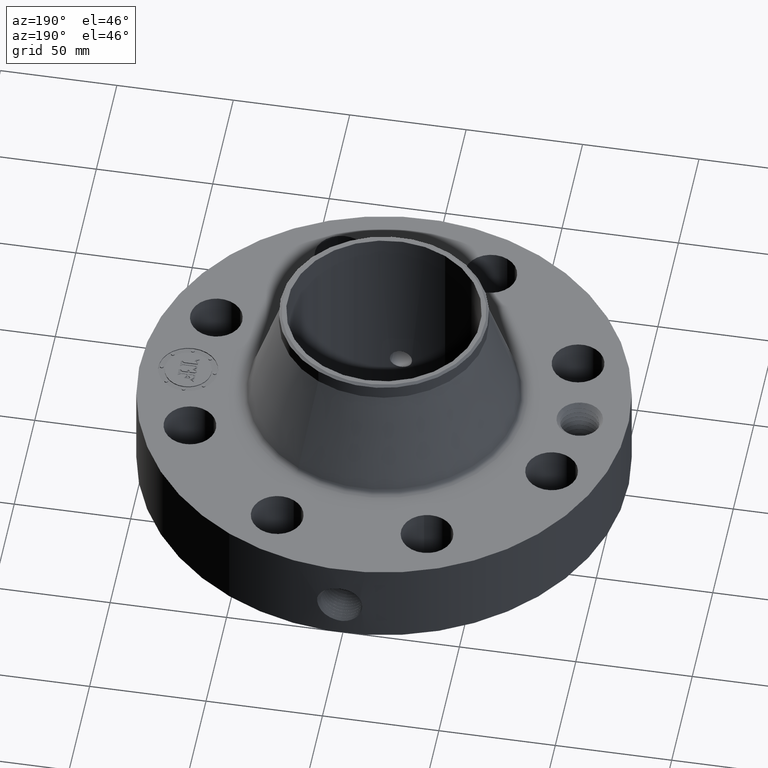
[diagram: clean part render]
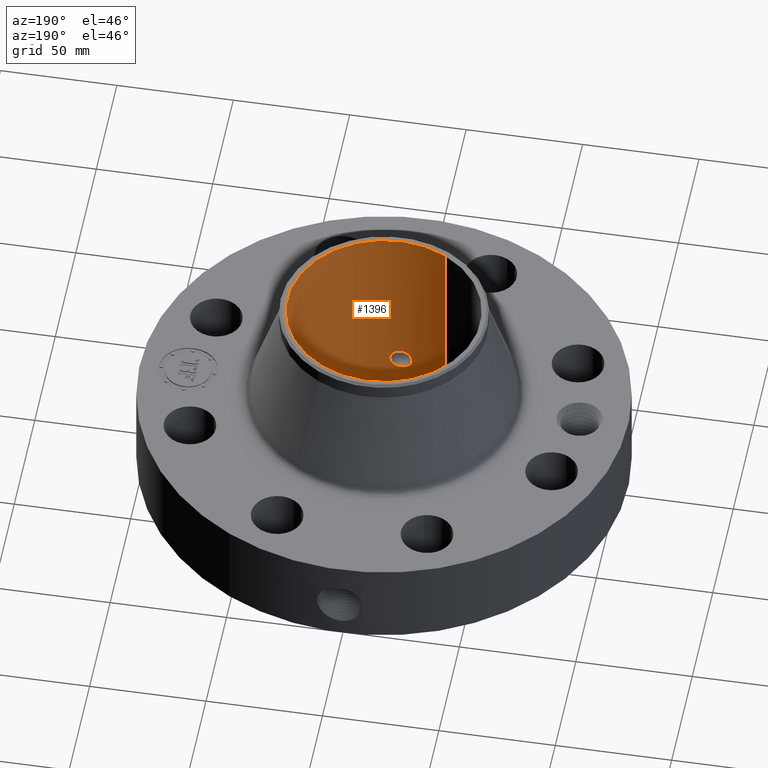
[diagram: same view with one face highlighted and labeled with its STEP entity id]
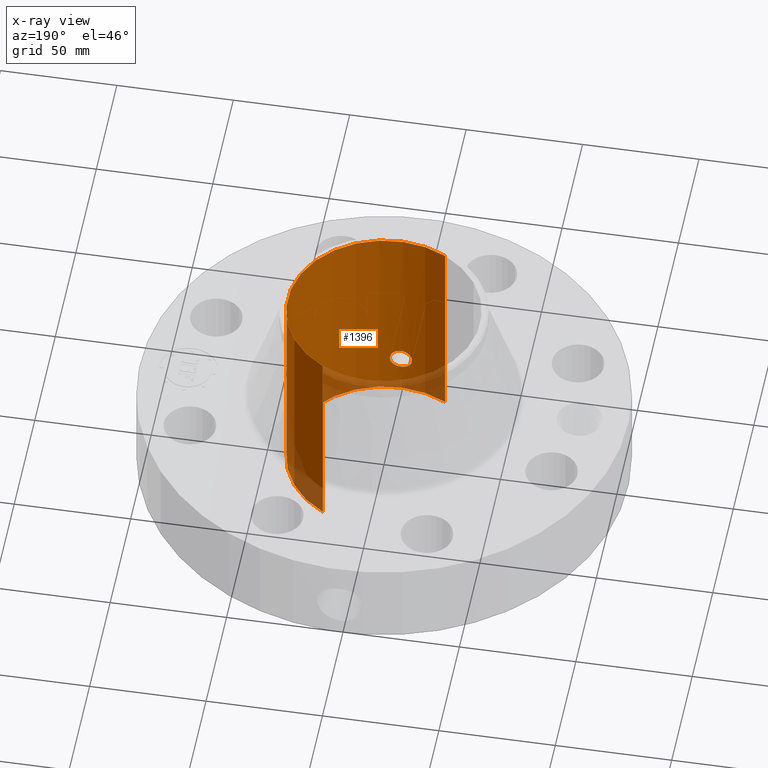
[diagram: x-ray of the same camera — body ghosted, the highlighted face saturated]
A machine part, auxiliary view. The second image highlights one B-rep face of the part: STEP entity #1396.
The next image is the same camera in x-ray: the body ghosted, the highlighted face saturated — about 12% of this face is hidden behind the body in this view.
In plain terms, the highlighted cylindrical surface (partial cylindrical patch) has radius 41.402 mm, axis along (0, 0, -1).
Its self-contained STEP definition (entity closure, byte-faithful):
#242=AXIS2_PLACEMENT_3D('Circle Axis2P3D',#240,#241,$) ;
#1327=AXIS2_PLACEMENT_3D('Cylinder Axis2P3D',#1324,#1325,#1326) ;
#1331=AXIS2_PLACEMENT_3D('Circle Axis2P3D',#1329,#1330,$) ;
#240=CARTESIAN_POINT('Axis2P3D Location',(0.,0.,0.250000000001)) ;
#244=CARTESIAN_POINT('Vertex',(0.781463627928,1.43045957589,0.250000000001)) ;
#246=CARTESIAN_POINT('Vertex',(-0.781463627928,-1.43045957589,0.250000000001)) ;
#1324=CARTESIAN_POINT('Axis2P3D Location',(0.,0.,2.00000000001)) ;
#1329=CARTESIAN_POINT('Axis2P3D Location',(0.,0.,3.75000000002)) ;
#1333=CARTESIAN_POINT('Vertex',(0.781463627928,1.43045957589,3.75000000002)) ;
#1335=CARTESIAN_POINT('Vertex',(-0.781463627928,-1.43045957589,3.75000000002)) ;
#1338=CARTESIAN_POINT('Line Origine',(0.781463627928,1.43045957589,2.00000000001)) ;
#1343=CARTESIAN_POINT('Line Origine',(-0.781463627928,-1.43045957589,2.00000000001)) ;
#1355=CARTESIAN_POINT('Control Point',(0.164546730355,-1.62167332516,0.850107711515)) ;
#1356=CARTESIAN_POINT('Control Point',(0.153730904127,-1.62277077729,0.830309474404)) ;
#1357=CARTESIAN_POINT('Control Point',(0.139942349399,-1.62407876481,0.81214694539)) ;
#1358=CARTESIAN_POINT('Control Point',(0.123505340189,-1.62546441109,0.796205643267)) ;
#1359=CARTESIAN_POINT('Control Point',(0.0771149468205,-1.62865979876,0.763178194438)) ;
#1360=CARTESIAN_POINT('Control Point',(0.0210941914913,-1.63041284554,0.748992986924)) ;
#1361=CARTESIAN_POINT('Control Point',(-0.0139425212436,-1.6304972922,0.748336697801)) ;
#1362=CARTESIAN_POINT('Control Point',(-0.0704792362493,-1.62897951384,0.760425773536)) ;
#1363=CARTESIAN_POINT('Control Point',(-0.118085597948,-1.62587625767,0.791718211055)) ;
#1364=CARTESIAN_POINT('Control Point',(-0.135115102468,-1.62449678863,0.807051725927)) ;
#1365=CARTESIAN_POINT('Control Point',(-0.174462073877,-1.62087059832,0.855085596914)) ;
#1366=CARTESIAN_POINT('Control Point',(-0.192229414376,-1.61861986851,0.916044524613)) ;
#1367=CARTESIAN_POINT('Control Point',(-0.192985142731,-1.61851751906,0.956842005437)) ;
#1368=CARTESIAN_POINT('Control Point',(-0.183175157004,-1.61978314997,0.995793182236)) ;
#1369=CARTESIAN_POINT('Control Point',(-0.164546730355,-1.62167332516,1.02989228849)) ;
#1370=CARTESIAN_POINT('Vertex',(0.164546730355,-1.62167332516,0.850107711515)) ;
#1372=CARTESIAN_POINT('Vertex',(-0.164546730355,-1.62167332516,1.02989228849)) ;
#1376=CARTESIAN_POINT('Control Point',(-0.164546730355,-1.62167332516,1.02989228849)) ;
#1377=CARTESIAN_POINT('Control Point',(-0.153730904133,-1.62277077729,1.04969052559)) ;
#1378=CARTESIAN_POINT('Control Point',(-0.139942349414,-1.62407876481,1.0678530546)) ;
#1379=CARTESIAN_POINT('Control Point',(-0.123505340166,-1.6254644111,1.08379435676)) ;
#1380=CARTESIAN_POINT('Control Point',(-0.0771149468048,-1.62865979876,1.11682180557)) ;
#1381=CARTESIAN_POINT('Control Point',(-0.0210941914874,-1.63041284554,1.13100701308)) ;
#1382=CARTESIAN_POINT('Control Point',(0.0139425212438,-1.6304972922,1.13166330221)) ;
#1383=CARTESIAN_POINT('Control Point',(0.0704792362498,-1.62897951384,1.11957422647)) ;
#1384=CARTESIAN_POINT('Control Point',(0.118085597949,-1.62587625767,1.08828178895)) ;
#1385=CARTESIAN_POINT('Control Point',(0.13511510247,-1.62449678863,1.07294827408)) ;
#1386=CARTESIAN_POINT('Control Point',(0.174462073878,-1.62087059832,1.02491440309)) ;
#1387=CARTESIAN_POINT('Control Point',(0.192229414377,-1.61861986851,0.963955475393)) ;
#1388=CARTESIAN_POINT('Control Point',(0.192985142732,-1.61851751906,0.92315799457)) ;
#1389=CARTESIAN_POINT('Control Point',(0.183175157004,-1.61978314997,0.884206817771)) ;
#1390=CARTESIAN_POINT('Control Point',(0.164546730355,-1.62167332516,0.850107711515)) ;
#241=DIRECTION('Axis2P3D Direction',(0.,0.,-0.0393700787402)) ;
#1325=DIRECTION('Axis2P3D Direction',(0.,0.,-0.0393700787402)) ;
#1326=DIRECTION('Axis2P3D XDirection',(-0.0188750212049,-0.0345504945626,0.)) ;
#1330=DIRECTION('Axis2P3D Direction',(0.,0.,-0.0393700787402)) ;
#1339=DIRECTION('Vector Direction',(0.,0.,-0.0393700787402)) ;
#1344=DIRECTION('Vector Direction',(0.,0.,-0.0393700787402)) ;
#1340=VECTOR('Line Direction',#1339,0.0393700787402) ;
#1345=VECTOR('Line Direction',#1344,0.0393700787402) ;
#1349=ORIENTED_EDGE('',*,*,#1337,.F.) ;
#1350=ORIENTED_EDGE('',*,*,#1342,.T.) ;
#1351=ORIENTED_EDGE('',*,*,#248,.T.) ;
#1352=ORIENTED_EDGE('',*,*,#1347,.F.) ;
#1393=ORIENTED_EDGE('',*,*,#1374,.F.) ;
#1394=ORIENTED_EDGE('',*,*,#1391,.F.) ;
#1395=FACE_BOUND('',#1392,.T.) ;
#1396=ADVANCED_FACE('PartBody',(#1353,#1395),#1328,.F.) ;
#1354=B_SPLINE_CURVE_WITH_KNOTS('',5,(#1355,#1356,#1357,#1358,#1359,#1360,#1361,#1362,#1363,#1364,#1365,#1366,#1367,#1368,#1369),.UNSPECIFIED.,.F.,.U.,(6,3,3,3,6),(0.,4.05667777064,10.1296924018,14.1893661885,21.1763057616),.UNSPECIFIED.) ;
#1375=B_SPLINE_CURVE_WITH_KNOTS('',5,(#1376,#1377,#1378,#1379,#1380,#1381,#1382,#1383,#1384,#1385,#1386,#1387,#1388,#1389,#1390),.UNSPECIFIED.,.F.,.U.,(6,3,3,3,6),(0.,4.05667776829,10.1296923996,14.1893661863,21.1763057593),.UNSPECIFIED.) ;
#243=CIRCLE('generated circle',#242,1.63000000001) ;
#1332=CIRCLE('generated circle',#1331,1.63000000001) ;
#1328=CYLINDRICAL_SURFACE('generated cylinder',#1327,1.63000000001) ;
#248=EDGE_CURVE('',#245,#247,#243,.T.) ;
#1337=EDGE_CURVE('',#1334,#1336,#1332,.T.) ;
#1342=EDGE_CURVE('',#1334,#245,#1341,.T.) ;
#1347=EDGE_CURVE('',#1336,#247,#1346,.T.) ;
#1374=EDGE_CURVE('',#1371,#1373,#1354,.T.) ;
#1391=EDGE_CURVE('',#1373,#1371,#1375,.T.) ;
#1348=EDGE_LOOP('',(#1349,#1350,#1351,#1352)) ;
#1392=EDGE_LOOP('',(#1393,#1394)) ;
#1353=FACE_OUTER_BOUND('',#1348,.T.) ;
#1341=LINE('Line',#1338,#1340) ;
#1346=LINE('Line',#1343,#1345) ;
#245=VERTEX_POINT('',#244) ;
#247=VERTEX_POINT('',#246) ;
#1334=VERTEX_POINT('',#1333) ;
#1336=VERTEX_POINT('',#1335) ;
#1371=VERTEX_POINT('',#1370) ;
#1373=VERTEX_POINT('',#1372) ;